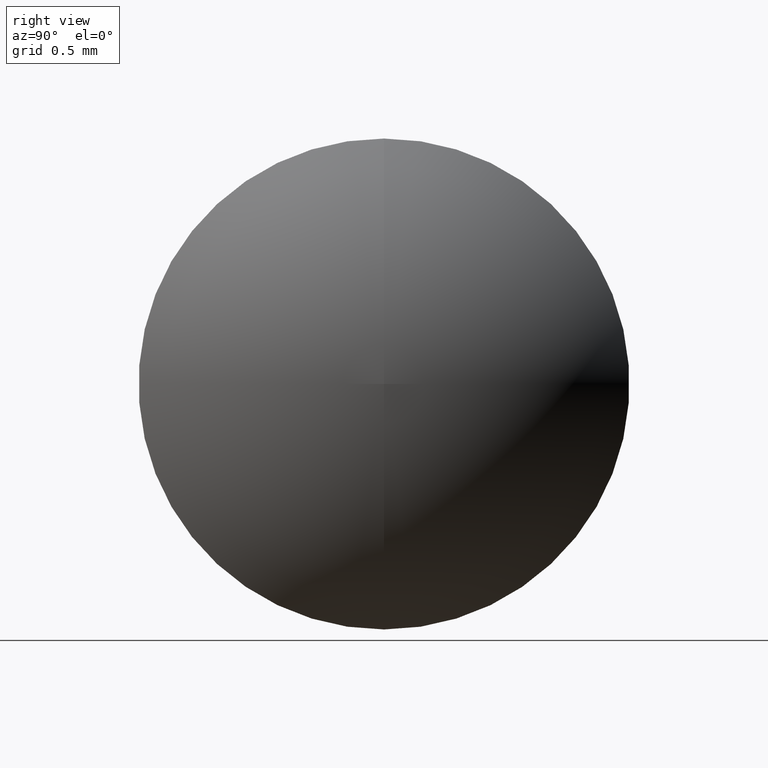
[diagram: clean part render]
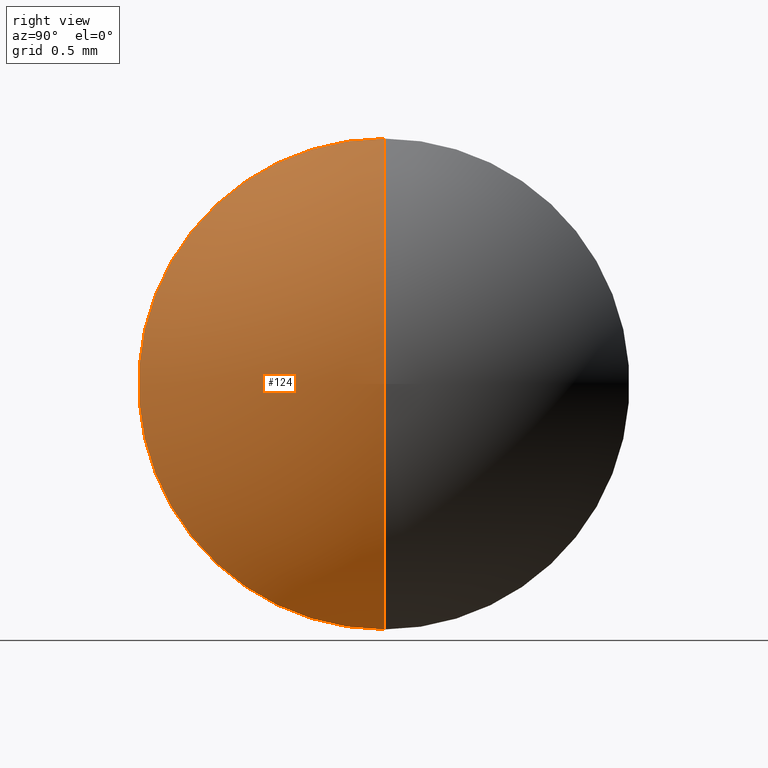
[diagram: same view with one face highlighted and labeled with its STEP entity id]
A machine part, right view. The second image highlights one B-rep face of the part: STEP entity #124.
In plain terms, the highlighted toroidal blend (fillet) surface has major radius 0.0013 mm and minor (blend) radius 2.5803 mm.
Its self-contained STEP definition (entity closure, byte-faithful):
#12 = EDGE_CURVE ( 'NONE', #79, #28, #96, .T. ) ;
#24 = DIRECTION ( 'NONE',  ( 0.0000000000000000000, 0.0000000000000000000, 1.000000000000000000 ) ) ;
#26 = AXIS2_PLACEMENT_3D ( 'NONE', #66, #161, #45 ) ;
#28 = VERTEX_POINT ( 'NONE', #141 ) ;
#32 = AXIS2_PLACEMENT_3D ( 'NONE', #103, #65, #41 ) ;
#33 = DIRECTION ( 'NONE',  ( 0.0000000000000000000, 0.0000000000000000000, 1.000000000000000000 ) ) ;
#41 = DIRECTION ( 'NONE',  ( 0.0000000000000000000, 0.0000000000000000000, 1.000000000000000000 ) ) ;
#45 = DIRECTION ( 'NONE',  ( 0.0000000000000000000, 0.0000000000000000000, -1.000000000000000000 ) ) ;
#55 = AXIS2_PLACEMENT_3D ( 'NONE', #95, #121, #24 ) ;
#62 = TOROIDAL_SURFACE ( 'NONE', #55, 0.001348738342871191900, 2.580263157894727900 ) ;
#65 = DIRECTION ( 'NONE',  ( -1.000000000000000000, -0.0000000000000000000, -0.0000000000000000000 ) ) ;
#66 = CARTESIAN_POINT ( 'NONE',  ( 385.0345005909586000, -62.77572471947115700, 0.001348738342871191900 ) ) ;
#73 = CIRCLE ( 'NONE', #26, 2.580263157894727900 ) ;
#79 = VERTEX_POINT ( 'NONE', #89 ) ;
#89 = CARTESIAN_POINT ( 'NONE',  ( 386.6647637488533200, -62.77572471947115700, -2.001348738342863400 ) ) ;
#95 = CARTESIAN_POINT ( 'NONE',  ( 385.0345005909586000, -62.77572471947115700, 0.0000000000000000000 ) ) ;
#96 = CIRCLE ( 'NONE', #32, 2.001348738342852300 ) ;
#103 = CARTESIAN_POINT ( 'NONE',  ( 386.6647637488533200, -62.77572471947115700, 0.0000000000000000000 ) ) ;
#104 = EDGE_CURVE ( 'NONE', #109, #28, #73, .T. ) ;
#107 = AXIS2_PLACEMENT_3D ( 'NONE', #146, #125, #33 ) ;
#109 = VERTEX_POINT ( 'NONE', #163 ) ;
#120 = ORIENTED_EDGE ( 'NONE', *, *, #104, .T. ) ;
#121 = DIRECTION ( 'NONE',  ( -1.000000000000000000, -0.0000000000000000000, -0.0000000000000000000 ) ) ;
#124 = ADVANCED_FACE ( 'NONE', ( #144 ), #62, .T. ) ;
#125 = DIRECTION ( 'NONE',  ( -0.0000000000000000000, 1.000000000000000000, 1.224646799147353200E-016 ) ) ;
#128 = EDGE_CURVE ( 'NONE', #109, #79, #135, .T. ) ;
#135 = CIRCLE ( 'NONE', #107, 2.580263157894727900 ) ;
#141 = CARTESIAN_POINT ( 'NONE',  ( 386.6647637488533200, -62.77572471947115700, 2.001348738342863400 ) ) ;
#144 = FACE_OUTER_BOUND ( 'NONE', #159, .T. ) ;
#146 = CARTESIAN_POINT ( 'NONE',  ( 385.0345005909586000, -62.77572471947115700, -0.001348738342871191900 ) ) ;
#147 = ORIENTED_EDGE ( 'NONE', *, *, #12, .F. ) ;
#148 = ORIENTED_EDGE ( 'NONE', *, *, #128, .F. ) ;
#159 = EDGE_LOOP ( 'NONE', ( #148, #120, #147 ) ) ;
#161 = DIRECTION ( 'NONE',  ( 0.0000000000000000000, -1.000000000000000000, 0.0000000000000000000 ) ) ;
#163 = CARTESIAN_POINT ( 'NONE',  ( 387.6147633963514600, -62.77572471947115700, 0.0000000000000000000 ) ) ;